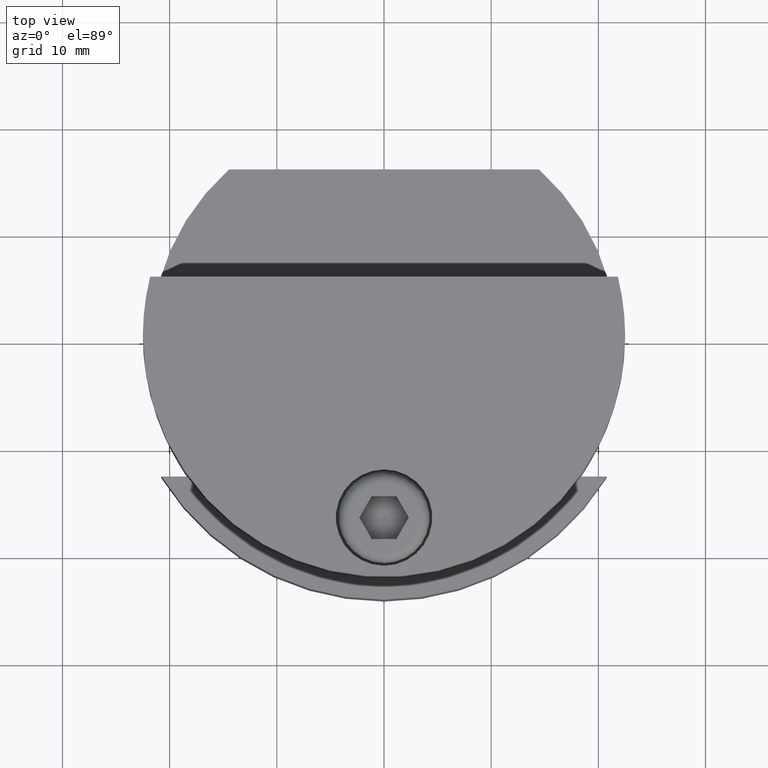
[diagram: clean part render]
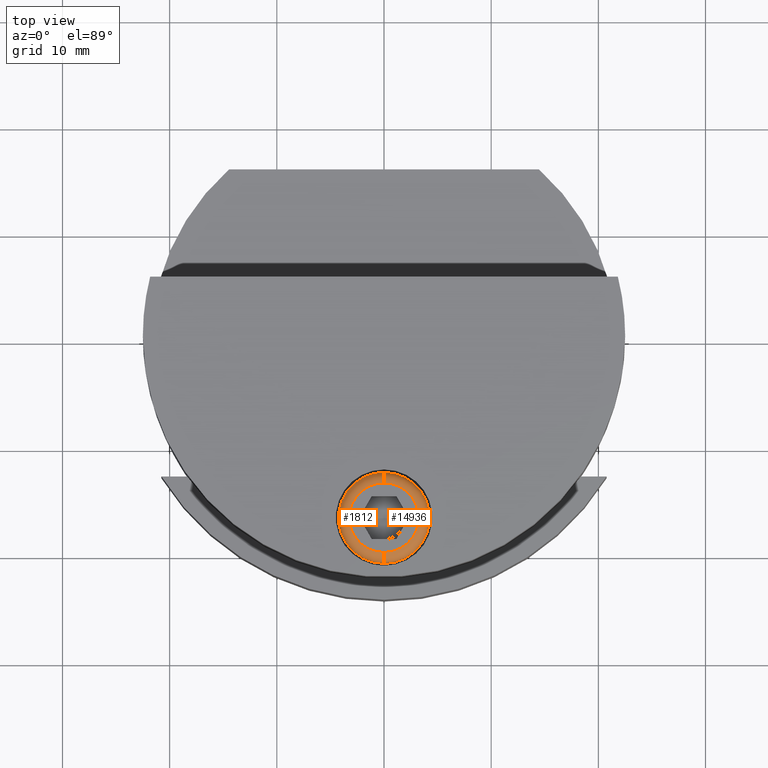
[diagram: same view with one multi-face feature highlighted, each face labeled with its STEP entity id]
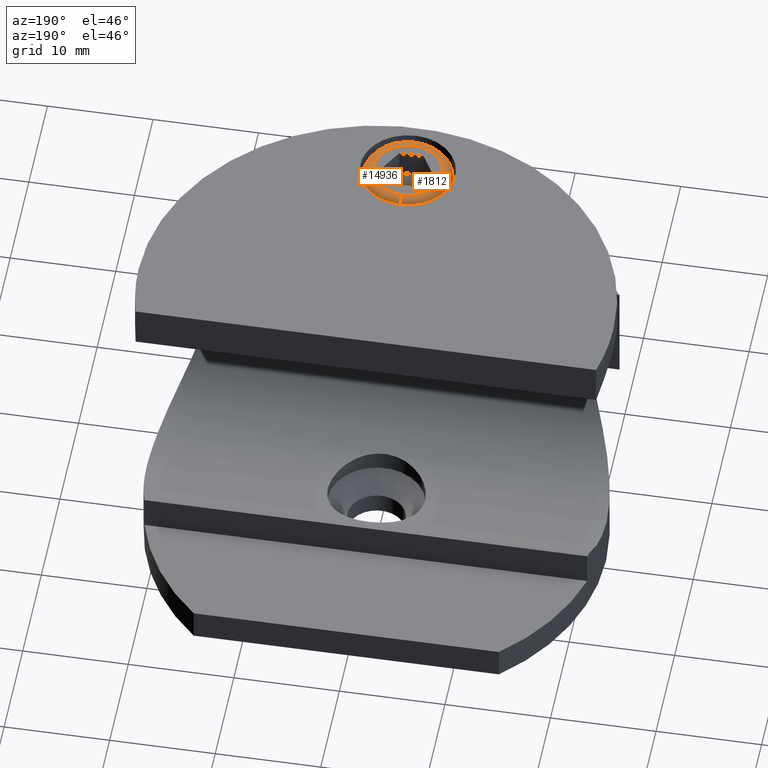
[diagram: same view with one multi-face feature highlighted, each face labeled with its STEP entity id]
A machine part, top view. The highlighted faces form ONE feature: a constant-radius fillet chain: 2 tangent blend faces with common blend radius 1 mm. The faces share edges in the B-rep.
A second angle (auxiliary view) of the same feature is appended — it is thin or edge-on in the first view.
Their STEP definitions:
[1] entity #14936 (Torus):
#389 = CIRCLE ( 'NONE', #7150, 1.000000000000000000 ) ;
#1013 = ORIENTED_EDGE ( 'NONE', *, *, #12989, .T. ) ;
#1526 = EDGE_CURVE ( 'NONE', #6589, #2218, #10345, .T. ) ;
#2218 = VERTEX_POINT ( 'NONE', #11766 ) ;
#2308 = CARTESIAN_POINT ( 'NONE',  ( 0.0000000000000000000, 4.000000000000000000, 3.250000000000000400 ) ) ;
#2540 = CIRCLE ( 'NONE', #3646, 4.250000000000000000 ) ;
#3176 = VERTEX_POINT ( 'NONE', #10137 ) ;
#3274 = DIRECTION ( 'NONE',  ( 0.0000000000000000000, 0.0000000000000000000, 1.000000000000000000 ) ) ;
#3422 = DIRECTION ( 'NONE',  ( 0.0000000000000000000, 1.000000000000000000, 0.0000000000000000000 ) ) ;
#3559 = DIRECTION ( 'NONE',  ( -1.000000000000000000, 0.0000000000000000000, 0.0000000000000000000 ) ) ;
#3646 = AXIS2_PLACEMENT_3D ( 'NONE', #7063, #4600, #3274 ) ;
#3830 = DIRECTION ( 'NONE',  ( 0.0000000000000000000, 1.000000000000000000, 0.0000000000000000000 ) ) ;
#4173 = CARTESIAN_POINT ( 'NONE',  ( 5.204748896376250700E-016, 4.000000000000000000, 4.250000000000000000 ) ) ;
#4413 = VERTEX_POINT ( 'NONE', #4173 ) ;
#4600 = DIRECTION ( 'NONE',  ( -0.0000000000000000000, -1.000000000000000000, -0.0000000000000000000 ) ) ;
#4759 = DIRECTION ( 'NONE',  ( 0.0000000000000000000, 0.0000000000000000000, 1.000000000000000000 ) ) ;
#5218 = EDGE_CURVE ( 'NONE', #3176, #6589, #389, .T. ) ;
#6589 = VERTEX_POINT ( 'NONE', #12213 ) ;
#7063 = CARTESIAN_POINT ( 'NONE',  ( 0.0000000000000000000, 4.000000000000000000, 0.0000000000000000000 ) ) ;
#7150 = AXIS2_PLACEMENT_3D ( 'NONE', #8404, #13298, #11984 ) ;
#7532 = AXIS2_PLACEMENT_3D ( 'NONE', #10844, #3422, #13327 ) ;
#8404 = CARTESIAN_POINT ( 'NONE',  ( 3.980102097228898200E-016, 4.000000000000000000, -3.250000000000000400 ) ) ;
#9207 = ORIENTED_EDGE ( 'NONE', *, *, #5218, .F. ) ;
#9579 = ORIENTED_EDGE ( 'NONE', *, *, #1526, .F. ) ;
#9978 = DIRECTION ( 'NONE',  ( 0.0000000000000000000, 0.0000000000000000000, 1.000000000000000000 ) ) ;
#10137 = CARTESIAN_POINT ( 'NONE',  ( 0.0000000000000000000, 4.000000000000000000, -4.250000000000000000 ) ) ;
#10345 = CIRCLE ( 'NONE', #14654, 3.250000000000000400 ) ;
#10547 = FACE_OUTER_BOUND ( 'NONE', #14535, .T. ) ;
#10586 = CIRCLE ( 'NONE', #11400, 1.000000000000000000 ) ;
#10844 = CARTESIAN_POINT ( 'NONE',  ( 0.0000000000000000000, 4.000000000000000000, 0.0000000000000000000 ) ) ;
#11400 = AXIS2_PLACEMENT_3D ( 'NONE', #2308, #3559, #4759 ) ;
#11766 = CARTESIAN_POINT ( 'NONE',  ( 0.0000000000000000000, 5.000000000000000000, 3.250000000000000400 ) ) ;
#11984 = DIRECTION ( 'NONE',  ( 1.224646799147353000E-016, 0.0000000000000000000, -1.000000000000000000 ) ) ;
#12213 = CARTESIAN_POINT ( 'NONE',  ( 4.592425496802575000E-016, 5.000000000000000000, -3.250000000000000400 ) ) ;
#12641 = TOROIDAL_SURFACE ( 'NONE', #7532, 3.250000000000000400, 1.000000000000000000 ) ;
#12989 = EDGE_CURVE ( 'NONE', #4413, #2218, #10586, .T. ) ;
#13298 = DIRECTION ( 'NONE',  ( 1.000000000000000000, -0.0000000000000000000, 1.224646799147353200E-016 ) ) ;
#13327 = DIRECTION ( 'NONE',  ( 0.0000000000000000000, 0.0000000000000000000, 1.000000000000000000 ) ) ;
#14240 = ORIENTED_EDGE ( 'NONE', *, *, #14383, .F. ) ;
#14383 = EDGE_CURVE ( 'NONE', #4413, #3176, #2540, .T. ) ;
#14535 = EDGE_LOOP ( 'NONE', ( #9207, #14240, #1013, #9579 ) ) ;
#14654 = AXIS2_PLACEMENT_3D ( 'NONE', #14899, #3830, #9978 ) ;
#14899 = CARTESIAN_POINT ( 'NONE',  ( 0.0000000000000000000, 5.000000000000000000, 0.0000000000000000000 ) ) ;
#14936 = ADVANCED_FACE ( 'NONE', ( #10547 ), #12641, .T. ) ;
[2] entity #1812 (Torus):
#389 = CIRCLE ( 'NONE', #7150, 1.000000000000000000 ) ;
#694 = AXIS2_PLACEMENT_3D ( 'NONE', #12170, #12254, #4792 ) ;
#977 = AXIS2_PLACEMENT_3D ( 'NONE', #8379, #14538, #15744 ) ;
#1113 = CARTESIAN_POINT ( 'NONE',  ( 0.0000000000000000000, 5.000000000000000000, 0.0000000000000000000 ) ) ;
#1379 = EDGE_CURVE ( 'NONE', #3176, #4413, #12626, .T. ) ;
#1623 = EDGE_LOOP ( 'NONE', ( #10759, #3464, #9248, #3107 ) ) ;
#1812 = ADVANCED_FACE ( 'NONE', ( #13554 ), #4027, .T. ) ;
#2218 = VERTEX_POINT ( 'NONE', #11766 ) ;
#2308 = CARTESIAN_POINT ( 'NONE',  ( 0.0000000000000000000, 4.000000000000000000, 3.250000000000000400 ) ) ;
#3107 = ORIENTED_EDGE ( 'NONE', *, *, #12989, .F. ) ;
#3176 = VERTEX_POINT ( 'NONE', #10137 ) ;
#3464 = ORIENTED_EDGE ( 'NONE', *, *, #5218, .T. ) ;
#3559 = DIRECTION ( 'NONE',  ( -1.000000000000000000, 0.0000000000000000000, 0.0000000000000000000 ) ) ;
#4027 = TOROIDAL_SURFACE ( 'NONE', #977, 3.250000000000000400, 1.000000000000000000 ) ;
#4173 = CARTESIAN_POINT ( 'NONE',  ( 5.204748896376250700E-016, 4.000000000000000000, 4.250000000000000000 ) ) ;
#4413 = VERTEX_POINT ( 'NONE', #4173 ) ;
#4759 = DIRECTION ( 'NONE',  ( 0.0000000000000000000, 0.0000000000000000000, 1.000000000000000000 ) ) ;
#4792 = DIRECTION ( 'NONE',  ( 0.0000000000000000000, 0.0000000000000000000, 1.000000000000000000 ) ) ;
#5218 = EDGE_CURVE ( 'NONE', #3176, #6589, #389, .T. ) ;
#5536 = AXIS2_PLACEMENT_3D ( 'NONE', #1113, #7409, #11036 ) ;
#6589 = VERTEX_POINT ( 'NONE', #12213 ) ;
#7150 = AXIS2_PLACEMENT_3D ( 'NONE', #8404, #13298, #11984 ) ;
#7409 = DIRECTION ( 'NONE',  ( 0.0000000000000000000, 1.000000000000000000, 0.0000000000000000000 ) ) ;
#8379 = CARTESIAN_POINT ( 'NONE',  ( 0.0000000000000000000, 4.000000000000000000, 0.0000000000000000000 ) ) ;
#8404 = CARTESIAN_POINT ( 'NONE',  ( 3.980102097228898200E-016, 4.000000000000000000, -3.250000000000000400 ) ) ;
#9248 = ORIENTED_EDGE ( 'NONE', *, *, #11674, .F. ) ;
#9286 = CIRCLE ( 'NONE', #5536, 3.250000000000000400 ) ;
#10137 = CARTESIAN_POINT ( 'NONE',  ( 0.0000000000000000000, 4.000000000000000000, -4.250000000000000000 ) ) ;
#10586 = CIRCLE ( 'NONE', #11400, 1.000000000000000000 ) ;
#10759 = ORIENTED_EDGE ( 'NONE', *, *, #1379, .F. ) ;
#11036 = DIRECTION ( 'NONE',  ( 0.0000000000000000000, 0.0000000000000000000, 1.000000000000000000 ) ) ;
#11400 = AXIS2_PLACEMENT_3D ( 'NONE', #2308, #3559, #4759 ) ;
#11674 = EDGE_CURVE ( 'NONE', #2218, #6589, #9286, .T. ) ;
#11766 = CARTESIAN_POINT ( 'NONE',  ( 0.0000000000000000000, 5.000000000000000000, 3.250000000000000400 ) ) ;
#11984 = DIRECTION ( 'NONE',  ( 1.224646799147353000E-016, 0.0000000000000000000, -1.000000000000000000 ) ) ;
#12170 = CARTESIAN_POINT ( 'NONE',  ( 0.0000000000000000000, 4.000000000000000000, 0.0000000000000000000 ) ) ;
#12213 = CARTESIAN_POINT ( 'NONE',  ( 4.592425496802575000E-016, 5.000000000000000000, -3.250000000000000400 ) ) ;
#12254 = DIRECTION ( 'NONE',  ( -0.0000000000000000000, -1.000000000000000000, -0.0000000000000000000 ) ) ;
#12626 = CIRCLE ( 'NONE', #694, 4.250000000000000000 ) ;
#12989 = EDGE_CURVE ( 'NONE', #4413, #2218, #10586, .T. ) ;
#13298 = DIRECTION ( 'NONE',  ( 1.000000000000000000, -0.0000000000000000000, 1.224646799147353200E-016 ) ) ;
#13554 = FACE_OUTER_BOUND ( 'NONE', #1623, .T. ) ;
#14538 = DIRECTION ( 'NONE',  ( 0.0000000000000000000, 1.000000000000000000, 0.0000000000000000000 ) ) ;
#15744 = DIRECTION ( 'NONE',  ( 0.0000000000000000000, 0.0000000000000000000, 1.000000000000000000 ) ) ;